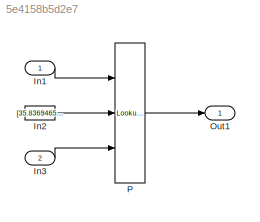
MODEL slx_5e4158b5d2e7
KIND model
CONFIG AbsTol = auto
CONFIG EnableMultiTasking = off
CONFIG FixedStep = auto
CONFIG MaxStep = auto
CONFIG MinStep = auto
CONFIG RelTol = 1e-3
CONFIG SampleTimeConstraint = Unconstrained
CONFIG Solver = FixedStepDiscrete
CONFIG SolverName = FixedStepDiscrete
CONFIG StartTime = 0.0
CONFIG StopTime = 10.0
BLOCK [Inport] In1
  IconDisplay = Port number
  OutDataTypeStr = uint16
  OutMax = 121
  OutMin = 33.8369
  PortDimensions = 3
BLOCK [Constant] In2
  OutDataTypeStr = uint16
  Value = [35.8369465511136;57.7855528823744;89.1572006924473;105.429307958684;119.23219393245]
BLOCK [Inport] In3
  IconDisplay = Port number
  Port = 2
  PortDimensions = 5
BLOCK [Outport] Out1
  IconDisplay = Port number
BLOCK [Reference] P  REF=simulink/Lookup
Tables/Lookup
Table
Dynamic
  Ports = [3, 1]
  SourceBlock = simulink/Lookup\nTables/Lookup\nTable\nDynamic
  SourceProductBaseCode = SL
  SourceProductName = Simulink
  SourceType = Lookup Table Dynamic
LINE In1:1 -> P:1
LINE In2:1 -> P:2
LINE In3:1 -> P:3
LINE P:1 -> Out1:1
